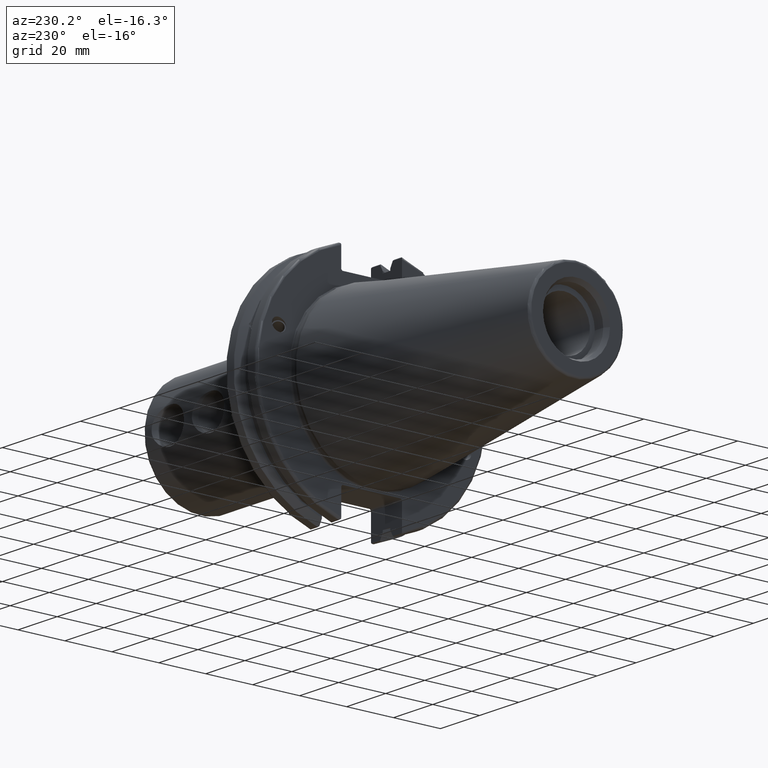
[diagram: clean part render]
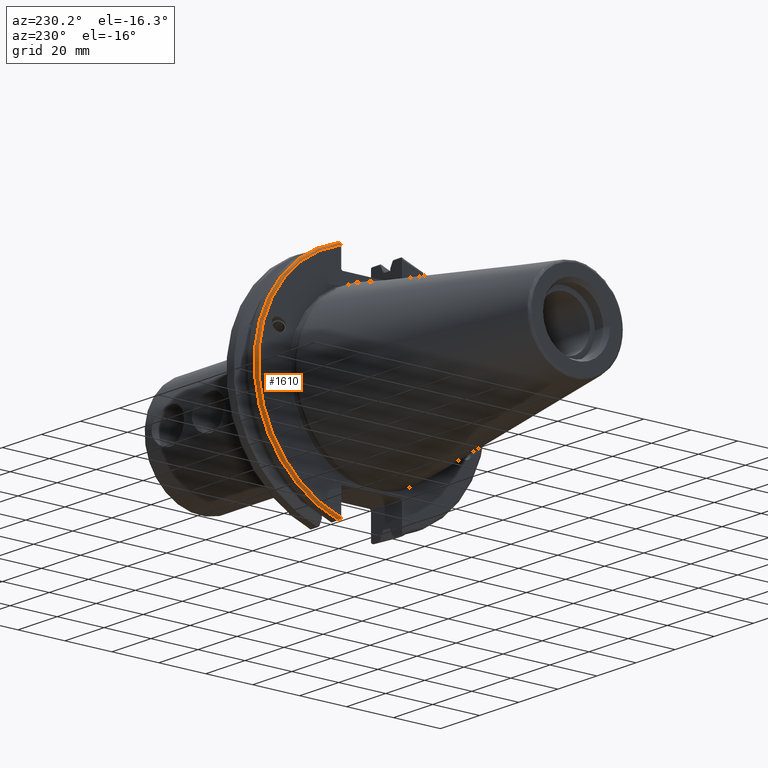
[diagram: same view with one face highlighted and labeled with its STEP entity id]
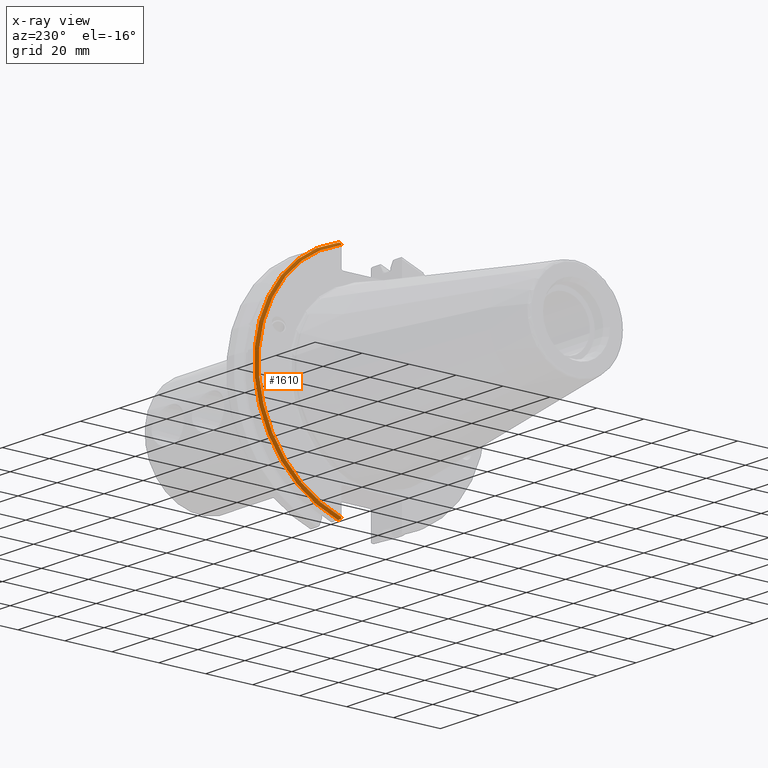
[diagram: x-ray of the same camera — body ghosted, the highlighted face saturated]
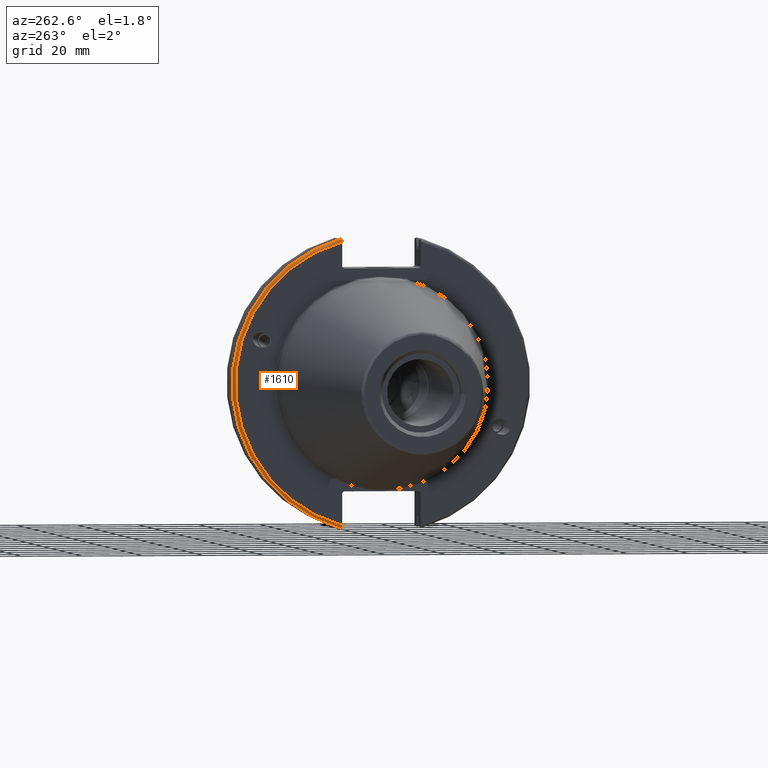
[diagram: same view with one face highlighted and labeled with its STEP entity id]
A machine part, auxiliary view. The second image highlights one B-rep face of the part: STEP entity #1610.
The next image is the same camera in x-ray: the body ghosted, the highlighted face saturated — about 0% of this face is hidden behind the body in this view.
A second angle (auxiliary view) of the same face is appended — the face is thin or edge-on in the first view.
In plain terms, the highlighted toroidal blend (fillet) surface has major radius 48.2125 mm and minor (blend) radius 1 mm.
Its self-contained STEP definition (entity closure, byte-faithful):
#41=TOROIDAL_SURFACE('',#1789,48.2125,1.);
#91=B_SPLINE_CURVE_WITH_KNOTS('',3,(#3148,#3149,#3150,#3151,#3152,#3153),
 .UNSPECIFIED.,.F.,.F.,(4,2,4),(0.0976892167532858,0.112000071948292,0.150881870548587),
 .UNSPECIFIED.);
#100=B_SPLINE_CURVE_WITH_KNOTS('',3,(#3272,#3273,#3274,#3275,#3276,#3277,
#3278,#3279),.UNSPECIFIED.,.F.,.F.,(4,2,2,4),(-0.104075769062722,-0.0730268503455479,
-0.0343639873656265,0.),.UNSPECIFIED.);
#101=B_SPLINE_CURVE_WITH_KNOTS('',3,(#3282,#3283,#3284,#3285,#3286,#3287,
#3288,#3289),.UNSPECIFIED.,.F.,.F.,(4,2,2,4),(0.,0.0343639873656266,0.0730268503455482,
0.104075769062722),.UNSPECIFIED.);
#102=B_SPLINE_CURVE_WITH_KNOTS('',3,(#3290,#3291,#3292,#3293,#3294,#3295),
 .UNSPECIFIED.,.F.,.F.,(4,2,4),(0.452859340315923,0.491741138916218,0.506051994111224),
 .UNSPECIFIED.);
#403=FACE_OUTER_BOUND('',#517,.T.);
#517=EDGE_LOOP('',(#1365,#1366,#1367,#1368,#1369,#1370));
#610=CIRCLE('',#1772,48.2125);
#616=CIRCLE('',#1790,49.2125);
#749=VERTEX_POINT('',#3091);
#750=VERTEX_POINT('',#3093);
#760=VERTEX_POINT('',#3147);
#780=VERTEX_POINT('',#3270);
#781=VERTEX_POINT('',#3271);
#782=VERTEX_POINT('',#3280);
#945=EDGE_CURVE('',#750,#749,#610,.T.);
#961=EDGE_CURVE('',#760,#750,#91,.T.);
#993=EDGE_CURVE('',#780,#781,#100,.T.);
#994=EDGE_CURVE('',#781,#782,#616,.T.);
#995=EDGE_CURVE('',#782,#760,#101,.T.);
#996=EDGE_CURVE('',#749,#780,#102,.T.);
#1365=ORIENTED_EDGE('',*,*,#993,.T.);
#1366=ORIENTED_EDGE('',*,*,#994,.T.);
#1367=ORIENTED_EDGE('',*,*,#995,.T.);
#1368=ORIENTED_EDGE('',*,*,#961,.T.);
#1369=ORIENTED_EDGE('',*,*,#945,.T.);
#1370=ORIENTED_EDGE('',*,*,#996,.T.);
#1610=ADVANCED_FACE('',(#403),#41,.T.);
#1772=AXIS2_PLACEMENT_3D('',#3094,#2106,#2107);
#1789=AXIS2_PLACEMENT_3D('',#3269,#2164,#2165);
#1790=AXIS2_PLACEMENT_3D('',#3281,#2166,#2167);
#2106=DIRECTION('center_axis',(1.,0.,0.));
#2107=DIRECTION('ref_axis',(0.,1.,-6.12323399573677E-17));
#2164=DIRECTION('center_axis',(1.,0.,0.));
#2165=DIRECTION('ref_axis',(0.,0.,-1.));
#2166=DIRECTION('center_axis',(-1.,0.,0.));
#2167=DIRECTION('ref_axis',(0.,1.,-6.12323399573677E-17));
#3091=CARTESIAN_POINT('',(3.175,12.95,46.4407434937254));
#3093=CARTESIAN_POINT('',(3.175,12.95,-46.4407434937254));
#3094=CARTESIAN_POINT('Origin',(3.175,0.,0.));
#3147=CARTESIAN_POINT('',(3.31949794294344,12.95,-46.9780755322918));
#3148=CARTESIAN_POINT('Ctrl Pts',(3.31949794294344,12.95,-46.9780755322918));
#3149=CARTESIAN_POINT('Ctrl Pts',(3.29341556483839,12.95,-46.9333752207329));
#3150=CARTESIAN_POINT('Ctrl Pts',(3.27115672912336,12.95,-46.887363294568));
#3151=CARTESIAN_POINT('Ctrl Pts',(3.20453530071253,12.95,-46.7230464903732));
#3152=CARTESIAN_POINT('Ctrl Pts',(3.175,12.95,-46.5703494890597));
#3153=CARTESIAN_POINT('Ctrl Pts',(3.175,12.95,-46.4407434937254));
#3269=CARTESIAN_POINT('Origin',(4.175,0.,0.));
#3270=CARTESIAN_POINT('',(3.31949794294344,12.95,46.9780755322918));
#3271=CARTESIAN_POINT('',(4.175,13.4317035994433,47.3440544806494));
#3272=CARTESIAN_POINT('Ctrl Pts',(3.31949794294344,12.95,46.9780755322918));
#3273=CARTESIAN_POINT('Ctrl Pts',(3.36785032278754,13.0300321736484,47.0388807469102));
#3274=CARTESIAN_POINT('Ctrl Pts',(3.43235971798504,13.1083611826073,47.0983919657547));
#3275=CARTESIAN_POINT('Ctrl Pts',(3.58507512107923,13.2478194810695,47.2043467509586));
#3276=CARTESIAN_POINT('Ctrl Pts',(3.70638116490965,13.3242014686233,47.2623787015413));
#3277=CARTESIAN_POINT('Ctrl Pts',(3.92661103245834,13.4067722493645,47.3251126473446));
#3278=CARTESIAN_POINT('Ctrl Pts',(4.06045337544791,13.4317035994433,47.3440544806494));
#3279=CARTESIAN_POINT('Ctrl Pts',(4.175,13.4317035994433,47.3440544806494));
#3280=CARTESIAN_POINT('',(4.175,13.4317035994433,-47.3440544806494));
#3281=CARTESIAN_POINT('Origin',(4.175,0.,0.));
#3282=CARTESIAN_POINT('Ctrl Pts',(4.175,13.4317035994433,-47.3440544806494));
#3283=CARTESIAN_POINT('Ctrl Pts',(4.06045337544791,13.4317035994433,-47.3440544806494));
#3284=CARTESIAN_POINT('Ctrl Pts',(3.92661103245834,13.4067722493645,-47.3251126473446));
#3285=CARTESIAN_POINT('Ctrl Pts',(3.70638116490964,13.3242014686232,-47.2623787015413));
#3286=CARTESIAN_POINT('Ctrl Pts',(3.58507512107923,13.2478194810695,-47.2043467509586));
#3287=CARTESIAN_POINT('Ctrl Pts',(3.43235971798504,13.1083611826073,-47.0983919657547));
#3288=CARTESIAN_POINT('Ctrl Pts',(3.36785032278754,13.0300321736484,-47.0388807469102));
#3289=CARTESIAN_POINT('Ctrl Pts',(3.31949794294344,12.95,-46.9780755322918));
#3290=CARTESIAN_POINT('Ctrl Pts',(3.175,12.95,46.4407434937254));
#3291=CARTESIAN_POINT('Ctrl Pts',(3.175,12.95,46.5703494890597));
#3292=CARTESIAN_POINT('Ctrl Pts',(3.20453530071253,12.95,46.7230464903732));
#3293=CARTESIAN_POINT('Ctrl Pts',(3.27115672912336,12.95,46.887363294568));
#3294=CARTESIAN_POINT('Ctrl Pts',(3.29341556483839,12.95,46.9333752207329));
#3295=CARTESIAN_POINT('Ctrl Pts',(3.31949794294344,12.95,46.9780755322918));